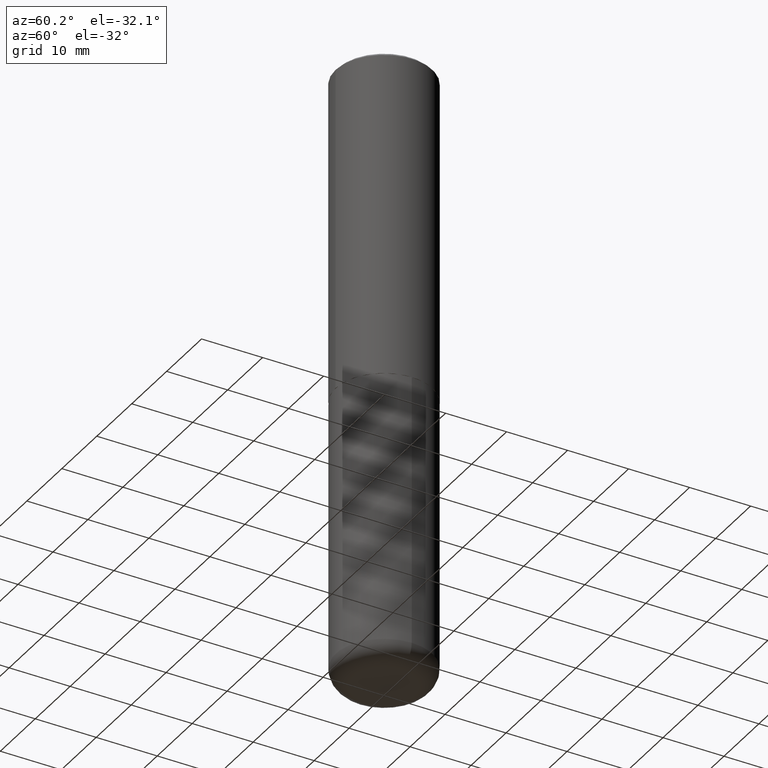
[diagram: clean part render]
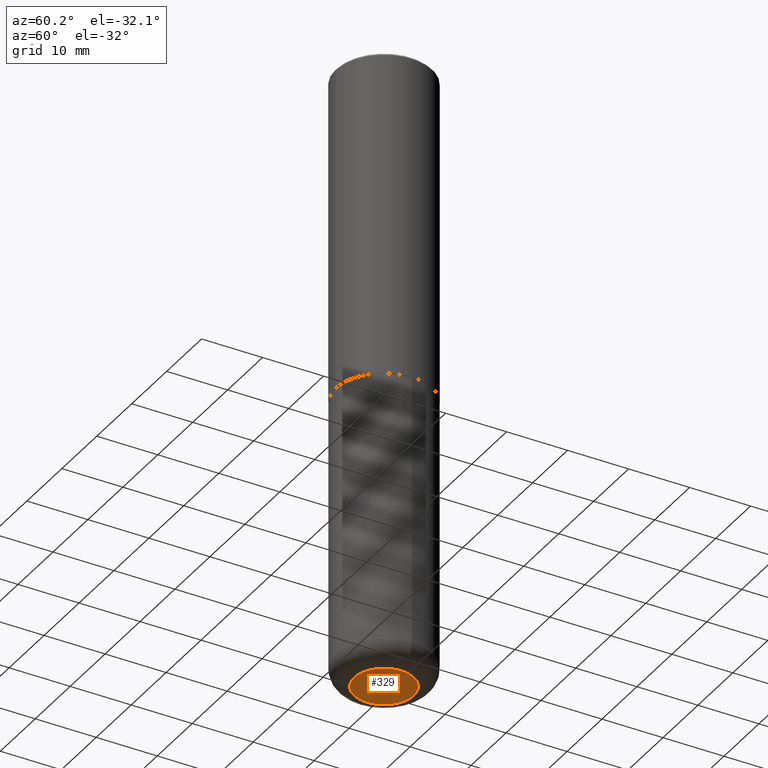
[diagram: same view with one face highlighted and labeled with its STEP entity id]
A machine part, auxiliary view. The second image highlights one B-rep face of the part: STEP entity #329.
In plain terms, the highlighted planar face has unit normal (0, -0, -1).
Its self-contained STEP definition (entity closure, byte-faithful):
#24 = AXIS2_PLACEMENT_3D ( 'NONE', #136, #140, #279 ) ;
#73 = CARTESIAN_POINT ( 'NONE',  ( 0.1925000000000000044, -1.531014567082719057E-14, -4.000000000000000888 ) ) ;
#85 = VERTEX_POINT ( 'NONE', #296 ) ;
#98 = CIRCLE ( 'NONE', #253, 0.1925000000000000044 ) ;
#107 = DIRECTION ( 'NONE',  ( 1.000000000000000000, -6.982962677686269077E-15, 0.000000000000000000 ) ) ;
#136 = CARTESIAN_POINT ( 'NONE',  ( 1.854023762560946993E-29, -2.531905987449679755E-14, -4.000000000000000000 ) ) ;
#140 = DIRECTION ( 'NONE',  ( 2.438088387897960049E-29, -3.491481338843145188E-15, -1.000000000000000000 ) ) ;
#151 = EDGE_LOOP ( 'NONE', ( #208, #283 ) ) ;
#158 = EDGE_CURVE ( 'NONE', #324, #85, #261, .T. ) ;
#170 = PLANE ( 'NONE',  #24 ) ;
#207 = DIRECTION ( 'NONE',  ( -2.445468806185136597E-29, 3.491481338843145583E-15, 1.000000000000000000 ) ) ;
#208 = ORIENTED_EDGE ( 'NONE', *, *, #158, .F. ) ;
#217 = AXIS2_PLACEMENT_3D ( 'NONE', #306, #207, #107 ) ;
#253 = AXIS2_PLACEMENT_3D ( 'NONE', #315, #291, #287 ) ;
#261 = CIRCLE ( 'NONE', #217, 0.1925000000000000044 ) ;
#279 = DIRECTION ( 'NONE',  ( -1.000000000000000000, 6.982962677686265922E-15, -4.876176775795935793E-29 ) ) ;
#283 = ORIENTED_EDGE ( 'NONE', *, *, #383, .F. ) ;
#287 = DIRECTION ( 'NONE',  ( 1.000000000000000000, -6.982962677686269077E-15, 0.000000000000000000 ) ) ;
#291 = DIRECTION ( 'NONE',  ( -2.445468806185136597E-29, 3.491481338843145583E-15, 1.000000000000000000 ) ) ;
#296 = CARTESIAN_POINT ( 'NONE',  ( -0.1925000000000000044, -1.196231606724774300E-14, -4.000000000000000888 ) ) ;
#306 = CARTESIAN_POINT ( 'NONE',  ( 9.781875224740547508E-29, -1.396592535537258391E-14, -4.000000000000000888 ) ) ;
#315 = CARTESIAN_POINT ( 'NONE',  ( 9.781875224740547508E-29, -1.396592535537258391E-14, -4.000000000000000888 ) ) ;
#324 = VERTEX_POINT ( 'NONE', #73 ) ;
#329 = ADVANCED_FACE ( 'NONE', ( #340 ), #170, .T. ) ;
#340 = FACE_OUTER_BOUND ( 'NONE', #151, .T. ) ;
#383 = EDGE_CURVE ( 'NONE', #85, #324, #98, .T. ) ;